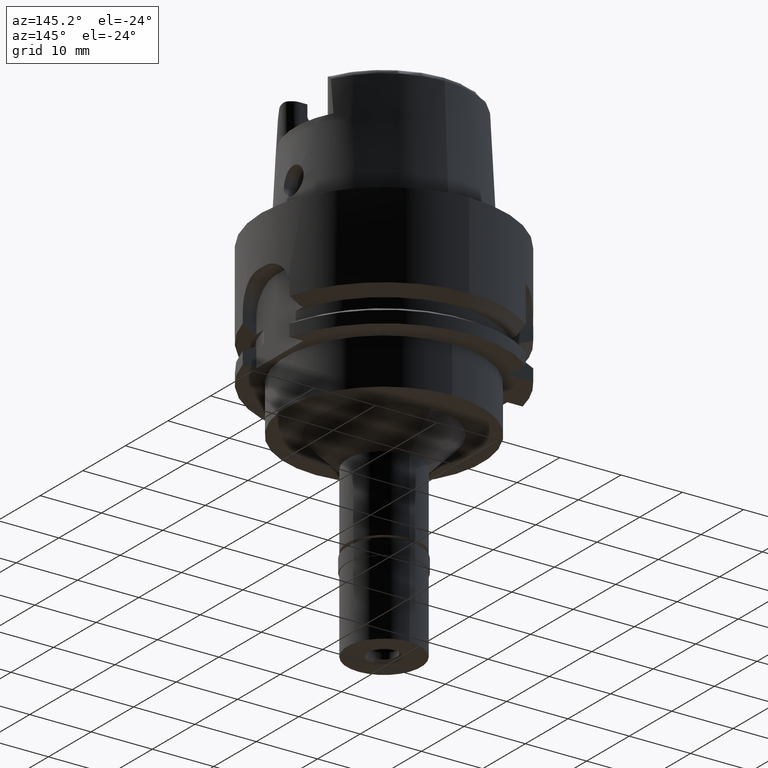
[diagram: clean part render]
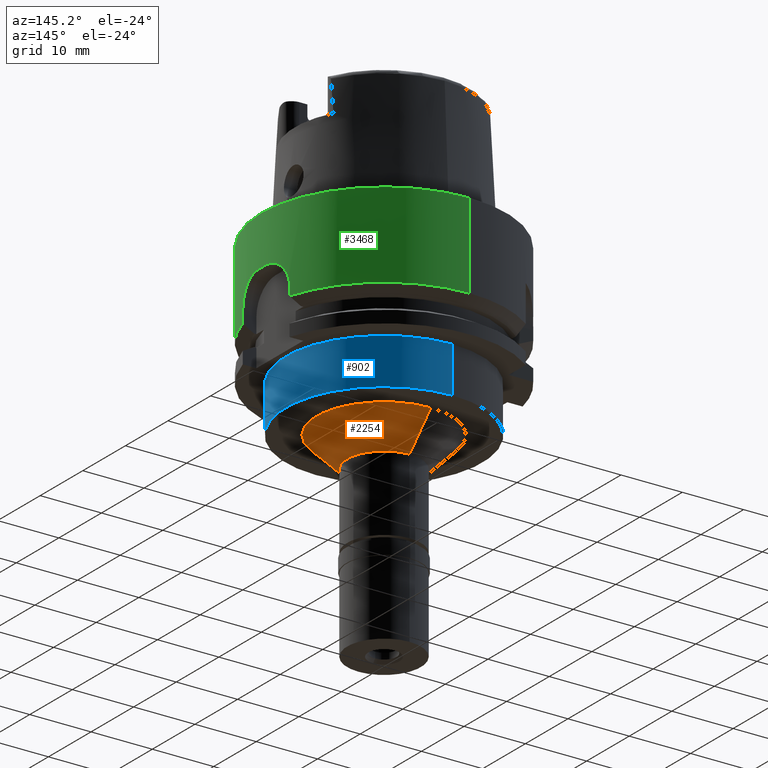
[diagram: same view with three faces highlighted in distinct colors, each labeled with its STEP entity id]
A machine part, auxiliary view with three faces highlighted in distinct colors.
Their STEP definitions:

[orange] entity #2254 — the highlighted conical surface has half-angle 45 deg.
#102 = CIRCLE ( 'NONE', #4206, 11.00000000000000000 ) ;
#153 = CARTESIAN_POINT ( 'NONE',  ( 0.0000000000000000000, 11.00000000000000000, -27.50000000000000000 ) ) ;
#179 = LINE ( 'NONE', #153, #3085 ) ;
#274 = VERTEX_POINT ( 'NONE', #1658 ) ;
#346 = DIRECTION ( 'NONE',  ( 0.0000000000000000000, 1.000000000000000000, 0.0000000000000000000 ) ) ;
#352 = EDGE_CURVE ( 'NONE', #4772, #274, #102, .T. ) ;
#366 = AXIS2_PLACEMENT_3D ( 'NONE', #4092, #3676, #5345 ) ;
#538 = DIRECTION ( 'NONE',  ( 0.0000000000000000000, 0.0000000000000000000, 1.000000000000000000 ) ) ;
#667 = ORIENTED_EDGE ( 'NONE', *, *, #1198, .F. ) ;
#879 = CIRCLE ( 'NONE', #366, 6.000000000000000000 ) ;
#888 = VECTOR ( 'NONE', #5179, 1000.000000000000114 ) ;
#897 = VERTEX_POINT ( 'NONE', #1452 ) ;
#1033 = CARTESIAN_POINT ( 'NONE',  ( 0.0000000000000000000, -11.00000000000000000, -27.50000000000000000 ) ) ;
#1198 = EDGE_CURVE ( 'NONE', #897, #1362, #879, .T. ) ;
#1237 = CARTESIAN_POINT ( 'NONE',  ( 0.0000000000000000000, 0.0000000000000000000, -27.50000000000000000 ) ) ;
#1362 = VERTEX_POINT ( 'NONE', #1716 ) ;
#1452 = CARTESIAN_POINT ( 'NONE',  ( 0.0000000000000000000, 6.000000000000000000, -32.50000000000000000 ) ) ;
#1505 = CONICAL_SURFACE ( 'NONE', #5184, 8.500000000000000000, 0.7853981633972997312 ) ;
#1658 = CARTESIAN_POINT ( 'NONE',  ( 0.0000000000000000000, -11.00000000000000000, -27.50000000000000000 ) ) ;
#1713 = EDGE_LOOP ( 'NONE', ( #3947, #1772, #667, #3029 ) ) ;
#1716 = CARTESIAN_POINT ( 'NONE',  ( 0.0000000000000000000, -6.000000000000000000, -32.50000000000000000 ) ) ;
#1772 = ORIENTED_EDGE ( 'NONE', *, *, #2120, .T. ) ;
#2120 = EDGE_CURVE ( 'NONE', #274, #1362, #5208, .T. ) ;
#2254 = ADVANCED_FACE ( 'NONE', ( #3166 ), #1505, .T. ) ;
#2627 = DIRECTION ( 'NONE',  ( 0.0000000000000000000, -0.7071067811865474617, -0.7071067811865474617 ) ) ;
#3029 = ORIENTED_EDGE ( 'NONE', *, *, #3198, .F. ) ;
#3085 = VECTOR ( 'NONE', #2627, 1000.000000000000114 ) ;
#3166 = FACE_OUTER_BOUND ( 'NONE', #1713, .T. ) ;
#3198 = EDGE_CURVE ( 'NONE', #4772, #897, #179, .T. ) ;
#3481 = CARTESIAN_POINT ( 'NONE',  ( 0.0000000000000000000, 0.0000000000000000000, -30.00000000000000000 ) ) ;
#3676 = DIRECTION ( 'NONE',  ( 0.0000000000000000000, 0.0000000000000000000, -1.000000000000000000 ) ) ;
#3947 = ORIENTED_EDGE ( 'NONE', *, *, #352, .T. ) ;
#4092 = CARTESIAN_POINT ( 'NONE',  ( 0.0000000000000000000, 0.0000000000000000000, -32.50000000000000000 ) ) ;
#4206 = AXIS2_PLACEMENT_3D ( 'NONE', #1237, #4534, #346 ) ;
#4372 = DIRECTION ( 'NONE',  ( 0.0000000000000000000, 1.000000000000000000, 0.0000000000000000000 ) ) ;
#4534 = DIRECTION ( 'NONE',  ( 0.0000000000000000000, 0.0000000000000000000, -1.000000000000000000 ) ) ;
#4772 = VERTEX_POINT ( 'NONE', #5348 ) ;
#5179 = DIRECTION ( 'NONE',  ( 0.0000000000000000000, 0.7071067811865474617, -0.7071067811865474617 ) ) ;
#5184 = AXIS2_PLACEMENT_3D ( 'NONE', #3481, #538, #4372 ) ;
#5208 = LINE ( 'NONE', #1033, #888 ) ;
#5345 = DIRECTION ( 'NONE',  ( 0.0000000000000000000, 1.000000000000000000, 0.0000000000000000000 ) ) ;
#5348 = CARTESIAN_POINT ( 'NONE',  ( 0.0000000000000000000, 11.00000000000000000, -27.50000000000000000 ) ) ;

[blue] entity #902 — the highlighted cylindrical surface (partial cylindrical patch) has radius 16 mm, axis along (0, 0, 1).
#72 = CARTESIAN_POINT ( 'NONE',  ( 0.0000000000000000000, 0.0000000000000000000, -27.50000000000000000 ) ) ;
#180 = DIRECTION ( 'NONE',  ( 0.0000000000000000000, 1.000000000000000000, 0.0000000000000000000 ) ) ;
#364 = DIRECTION ( 'NONE',  ( 0.0000000000000000000, 0.0000000000000000000, 1.000000000000000000 ) ) ;
#457 = AXIS2_PLACEMENT_3D ( 'NONE', #4179, #794, #3407 ) ;
#537 = ORIENTED_EDGE ( 'NONE', *, *, #3271, .T. ) ;
#555 = DIRECTION ( 'NONE',  ( 0.0000000000000000000, 0.0000000000000000000, -1.000000000000000000 ) ) ;
#562 = ORIENTED_EDGE ( 'NONE', *, *, #3106, .T. ) ;
#794 = DIRECTION ( 'NONE',  ( 0.0000000000000000000, 0.0000000000000000000, -1.000000000000000000 ) ) ;
#862 = CARTESIAN_POINT ( 'NONE',  ( 0.0000000000000000000, 16.00000000000000000, -27.50000000000000000 ) ) ;
#902 = ADVANCED_FACE ( 'NONE', ( #4362 ), #2275, .T. ) ;
#966 = VERTEX_POINT ( 'NONE', #4388 ) ;
#990 = DIRECTION ( 'NONE',  ( 0.0000000000000000000, 0.0000000000000000000, 1.000000000000000000 ) ) ;
#1046 = CARTESIAN_POINT ( 'NONE',  ( 0.0000000000000000000, 16.00000000000000000, -20.00000000000000000 ) ) ;
#1340 = EDGE_LOOP ( 'NONE', ( #562, #537, #3609, #3285 ) ) ;
#1387 = VECTOR ( 'NONE', #4787, 1000.000000000000000 ) ;
#1601 = AXIS2_PLACEMENT_3D ( 'NONE', #72, #364, #4804 ) ;
#1643 = VERTEX_POINT ( 'NONE', #862 ) ;
#1777 = CIRCLE ( 'NONE', #457, 16.00000000000000000 ) ;
#1810 = CARTESIAN_POINT ( 'NONE',  ( 0.0000000000000000000, 16.00000000000000000, -20.00000000000000000 ) ) ;
#1845 = LINE ( 'NONE', #3491, #3795 ) ;
#2100 = AXIS2_PLACEMENT_3D ( 'NONE', #2737, #990, #180 ) ;
#2115 = VERTEX_POINT ( 'NONE', #1810 ) ;
#2275 = CYLINDRICAL_SURFACE ( 'NONE', #2100, 16.00000000000000000 ) ;
#2384 = CARTESIAN_POINT ( 'NONE',  ( 0.0000000000000000000, -16.00000000000000000, -27.50000000000000000 ) ) ;
#2737 = CARTESIAN_POINT ( 'NONE',  ( 0.0000000000000000000, 0.0000000000000000000, -59.79999999999999716 ) ) ;
#3000 = VERTEX_POINT ( 'NONE', #2384 ) ;
#3106 = EDGE_CURVE ( 'NONE', #2115, #966, #1777, .T. ) ;
#3107 = LINE ( 'NONE', #1046, #1387 ) ;
#3184 = EDGE_CURVE ( 'NONE', #3000, #1643, #5282, .T. ) ;
#3271 = EDGE_CURVE ( 'NONE', #966, #3000, #1845, .T. ) ;
#3285 = ORIENTED_EDGE ( 'NONE', *, *, #4285, .F. ) ;
#3407 = DIRECTION ( 'NONE',  ( 0.0000000000000000000, 1.000000000000000000, 0.0000000000000000000 ) ) ;
#3491 = CARTESIAN_POINT ( 'NONE',  ( 0.0000000000000000000, -16.00000000000000000, -20.00000000000000000 ) ) ;
#3609 = ORIENTED_EDGE ( 'NONE', *, *, #3184, .T. ) ;
#3795 = VECTOR ( 'NONE', #555, 1000.000000000000000 ) ;
#4179 = CARTESIAN_POINT ( 'NONE',  ( 0.0000000000000000000, 0.0000000000000000000, -20.00000000000000000 ) ) ;
#4285 = EDGE_CURVE ( 'NONE', #2115, #1643, #3107, .T. ) ;
#4362 = FACE_OUTER_BOUND ( 'NONE', #1340, .T. ) ;
#4388 = CARTESIAN_POINT ( 'NONE',  ( 0.0000000000000000000, -16.00000000000000000, -20.00000000000000000 ) ) ;
#4787 = DIRECTION ( 'NONE',  ( 0.0000000000000000000, 0.0000000000000000000, -1.000000000000000000 ) ) ;
#4804 = DIRECTION ( 'NONE',  ( 0.0000000000000000000, -1.000000000000000000, 0.0000000000000000000 ) ) ;
#5282 = CIRCLE ( 'NONE', #1601, 16.00000000000000000 ) ;

[green] entity #3468 — the highlighted cylindrical surface (partial cylindrical patch) has radius 20 mm, axis along (0, 0, 1).
#3 = VERTEX_POINT ( 'NONE', #945 ) ;
#30 = CARTESIAN_POINT ( 'NONE',  ( 19.86146910055557768, -2.348871068700572273, -8.206248360021437094 ) ) ;
#57 = CARTESIAN_POINT ( 'NONE',  ( 19.39600780299115357, -4.882167647177913850, -10.21950844978120720 ) ) ;
#80 = CARTESIAN_POINT ( 'NONE',  ( 19.83212258908739756, -2.585548732823263141, -8.288267443671319512 ) ) ;
#88 = VERTEX_POINT ( 'NONE', #143 ) ;
#111 = CARTESIAN_POINT ( 'NONE',  ( 19.69274314928225422, -3.492268379238754328, -8.753188017611570615 ) ) ;
#138 = CARTESIAN_POINT ( 'NONE',  ( 19.81613325514287638, -2.705294497717142477, -8.335622991193288200 ) ) ;
#143 = CARTESIAN_POINT ( 'NONE',  ( 19.97498435543999662, 0.9999999999999000799, -8.000000000000000000 ) ) ;
#173 = DIRECTION ( 'NONE',  ( 0.0000000000000000000, 1.000000000000000000, 0.0000000000000000000 ) ) ;
#193 = CARTESIAN_POINT ( 'NONE',  ( 19.25972185282163096, 5.392789179745101968, -11.51281003797939206 ) ) ;
#196 = EDGE_CURVE ( 'NONE', #303, #88, #2836, .T. ) ;
#202 = VECTOR ( 'NONE', #4905, 1000.000000000000000 ) ;
#222 = CARTESIAN_POINT ( 'NONE',  ( 0.0000000000000000000, -20.00000000000000000, 4.973799150320999175E-14 ) ) ;
#223 = CARTESIAN_POINT ( 'NONE',  ( 19.79308005088291011, 2.869920567938713862, -8.406735843562756827 ) ) ;
#277 = AXIS2_PLACEMENT_3D ( 'NONE', #2551, #452, #2123 ) ;
#279 = CARTESIAN_POINT ( 'NONE',  ( 0.0000000000000000000, -20.00000000000000000, 2.842170943039999687E-14 ) ) ;
#303 = VERTEX_POINT ( 'NONE', #3721 ) ;
#407 = VERTEX_POINT ( 'NONE', #5332 ) ;
#423 = CARTESIAN_POINT ( 'NONE',  ( 19.45475018711523063, -4.645026843544051154, -9.844581254208636167 ) ) ;
#434 = EDGE_CURVE ( 'NONE', #1060, #1096, #623, .T. ) ;
#438 = AXIS2_PLACEMENT_3D ( 'NONE', #4945, #2433, #3238 ) ;
#450 = CARTESIAN_POINT ( 'NONE',  ( 19.56053743362657826, -4.169621998353268744, -9.305705765964203735 ) ) ;
#452 = DIRECTION ( 'NONE',  ( 0.0000000000000000000, 0.0000000000000000000, 1.000000000000000000 ) ) ;
#454 = VECTOR ( 'NONE', #2485, 1000.000000000000000 ) ;
#474 = CARTESIAN_POINT ( 'NONE',  ( 19.88634664950564712, -2.130603934985399572, -8.141702171101698582 ) ) ;
#571 = CARTESIAN_POINT ( 'NONE',  ( 19.89335567336978627, 2.144328412485492219, -8.101629999660756809 ) ) ;
#589 = EDGE_CURVE ( 'NONE', #3, #3103, #4300, .T. ) ;
#623 = B_SPLINE_CURVE_WITH_KNOTS ( 'NONE', 3,
 ( #2199, #2933, #4584, #5019, #474, #30, #1262, #80, #4240, #2911, #1684, #138, #2601, #4607, #911, #854, #2089, #3800, #4211, #2546, #4187, #3880, #111, #3852, #2142, #3387, #1736, #1797, #4290, #3823, #3362, #2573, #1284, #4264, #2956, #450, #3413, #3014, #828, #423, #57, #4695, #3772, #1318, #1710, #1767, #5044, #3475, #5074, #4641, #882, #2987, #4670, #2491 ),
 .UNSPECIFIED., .F., .F.,
 ( 4, 2, 2, 1, 1, 1, 2, 2, 2, 2, 1, 1, 1, 1, 1, 2, 2, 2, 2, 2, 1, 1, 1, 2, 2, 2, 2, 2, 1, 1, 1, 2, 2, 4 ),
 ( 0.0000000000000000000, 0.1249999999997689071, 0.1874999999996534716, 0.2187499999995958233, 0.2343749999995671518, 0.2421874999995527744, 0.2460937499995456135, 0.2499999999995384248, 0.3124999999994242383, 0.3437499999993670619, 0.3593749999993381961, 0.3671874999993237076, 0.3710937499993162692, 0.3730468749993122168, 0.3740234374993102184, 0.3745117187493091082, 0.3749999999993080535, 0.4374999999993889332, 0.4687499999994294564, 0.4843749999994497735, 0.4921874999994600430, 0.4960937499994650390, 0.4980468749994677036, 0.4990234374994690358, 0.4999999999994703126, 0.6249999999995893285, 0.6874999999996488365, 0.7187499999996783684, 0.7343749999996928013, 0.7421874999997001288, 0.7460937499997037925, 0.7480468749997061240, 0.7499999999997083444, 1.000000000000000000 ),
 .UNSPECIFIED. ) ;
#629 = CARTESIAN_POINT ( 'NONE',  ( 19.31805002971633556, 5.178514043762493912, -10.82961678952050910 ) ) ;
#652 = CARTESIAN_POINT ( 'NONE',  ( 19.43284809394379664, 4.733461550932530848, -9.983469680863667151 ) ) ;
#660 = CARTESIAN_POINT ( 'NONE',  ( 19.22888452303000051, -5.500000000000000000, -12.50000000000000000 ) ) ;
#671 = CARTESIAN_POINT ( 'NONE',  ( 19.22888452303000051, 5.500000000000000000, -12.50000000000000000 ) ) ;
#821 = CARTESIAN_POINT ( 'NONE',  ( 0.0000000000000000000, 20.00000000000000000, -13.97927405783999966 ) ) ;
#828 = CARTESIAN_POINT ( 'NONE',  ( 19.50217921959730205, -4.442594003733398189, -9.578651589275207101 ) ) ;
#854 = CARTESIAN_POINT ( 'NONE',  ( 19.73879065015394474, -3.222290560682940175, -8.586223259454346390 ) ) ;
#882 = CARTESIAN_POINT ( 'NONE',  ( 19.32339585466796450, -5.158492913142817216, -10.78041865482828499 ) ) ;
#911 = CARTESIAN_POINT ( 'NONE',  ( 19.74957719967446934, -3.155379730779135361, -8.549071909224613464 ) ) ;
#945 = CARTESIAN_POINT ( 'NONE',  ( 19.22888438503999708, 5.500000482439000749, -13.97927001509999911 ) ) ;
#984 = DIRECTION ( 'NONE',  ( 1.988963543757989487E-08, 6.953939028894961663E-08, -0.9999999999999973355 ) ) ;
#1060 = VERTEX_POINT ( 'NONE', #4861 ) ;
#1082 = CARTESIAN_POINT ( 'NONE',  ( 19.57669236913240951, 4.094477243181033010, -9.229513695134629714 ) ) ;
#1096 = VERTEX_POINT ( 'NONE', #3651 ) ;
#1104 = CARTESIAN_POINT ( 'NONE',  ( 19.29610026531020850, 5.260308519016965612, -11.04748964016566148 ) ) ;
#1262 = CARTESIAN_POINT ( 'NONE',  ( 19.84841862392591239, -2.458145788978062463, -8.241565015754648726 ) ) ;
#1284 = CARTESIAN_POINT ( 'NONE',  ( 19.57603633006141663, -4.096177702136805543, -9.234171356003837872 ) ) ;
#1318 = CARTESIAN_POINT ( 'NONE',  ( 19.34811643789123181, -5.065740602235473844, -10.57039094677958779 ) ) ;
#1326 = DIRECTION ( 'NONE',  ( 0.0000000000000000000, 0.0000000000000000000, 1.000000000000000000 ) ) ;
#1431 = CARTESIAN_POINT ( 'NONE',  ( 0.0000000000000000000, 20.00000000000000000, 2.842170943039999687E-14 ) ) ;
#1439 = ORIENTED_EDGE ( 'NONE', *, *, #2133, .F. ) ;
#1441 = CARTESIAN_POINT ( 'NONE',  ( 19.28670451638931027, 5.294861289714977381, -11.15473651105902775 ) ) ;
#1490 = CARTESIAN_POINT ( 'NONE',  ( 19.26935851838151947, 5.358219115044847491, -11.36942689067134005 ) ) ;
#1519 = CARTESIAN_POINT ( 'NONE',  ( 19.37460722631804444, 4.968141091574619139, -10.35745565388886291 ) ) ;
#1605 = EDGE_CURVE ( 'NONE', #2333, #3403, #3726, .T. ) ;
#1660 = EDGE_CURVE ( 'NONE', #4726, #2333, #2637, .T. ) ;
#1684 = CARTESIAN_POINT ( 'NONE',  ( 19.81758746035329821, -2.694603807303679766, -8.331257517397663293 ) ) ;
#1710 = CARTESIAN_POINT ( 'NONE',  ( 19.33808127858485904, -5.103432223538802326, -10.65263608821719288 ) ) ;
#1736 = CARTESIAN_POINT ( 'NONE',  ( 19.67792994971534881, -3.575208927927476577, -8.806736260004933925 ) ) ;
#1767 = CARTESIAN_POINT ( 'NONE',  ( 19.33325746712852222, -5.121509964628943479, -10.69317378615918734 ) ) ;
#1768 = VECTOR ( 'NONE', #4058, 1000.000000000000000 ) ;
#1797 = CARTESIAN_POINT ( 'NONE',  ( 19.64440606327426764, -3.753015825505305880, -8.939609798992917078 ) ) ;
#1798 = EDGE_CURVE ( 'NONE', #1060, #88, #3168, .T. ) ;
#1835 = CARTESIAN_POINT ( 'NONE',  ( 19.32104445936979786, 5.167284975352738563, -10.80183977556034591 ) ) ;
#1847 = EDGE_CURVE ( 'NONE', #3, #303, #2837, .T. ) ;
#1862 = CARTESIAN_POINT ( 'NONE',  ( 19.31475624754254738, 5.190847333182726508, -10.86066003661227164 ) ) ;
#1910 = CARTESIAN_POINT ( 'NONE',  ( 19.53068921811413006, 4.307772359090763281, -9.448422801194535481 ) ) ;
#2033 = CYLINDRICAL_SURFACE ( 'NONE', #3709, 20.00000000000000000 ) ;
#2057 = ORIENTED_EDGE ( 'NONE', *, *, #3095, .F. ) ;
#2089 = CARTESIAN_POINT ( 'NONE',  ( 19.72182370919556860, -3.324154676918617657, -8.646448266145705830 ) ) ;
#2123 = DIRECTION ( 'NONE',  ( 0.0000000000000000000, -1.000000000000000000, 0.0000000000000000000 ) ) ;
#2133 = EDGE_CURVE ( 'NONE', #1096, #407, #2732, .T. ) ;
#2142 = CARTESIAN_POINT ( 'NONE',  ( 19.69198617144294161, -3.496533464392037160, -8.756028756603322805 ) ) ;
#2199 = CARTESIAN_POINT ( 'NONE',  ( 19.97498435543999662, -0.9999999999999000799, -8.000000000000000000 ) ) ;
#2236 = CARTESIAN_POINT ( 'NONE',  ( 19.94751910473255307, 1.548617953056870000, -7.999999999999991118 ) ) ;
#2253 = EDGE_LOOP ( 'NONE', ( #4705, #3412, #4136, #3668, #2057, #4506, #2481, #3257, #1439, #3152 ) ) ;
#2291 = CARTESIAN_POINT ( 'NONE',  ( 19.76304889700402967, 3.072041751379376073, -8.504730640401618302 ) ) ;
#2315 = CARTESIAN_POINT ( 'NONE',  ( 19.48953007571676821, 4.491951112803580948, -9.660445326844032010 ) ) ;
#2333 = VERTEX_POINT ( 'NONE', #222 ) ;
#2337 = CARTESIAN_POINT ( 'NONE',  ( 19.55092274637132022, 4.214494902100974549, -9.350849150100273732 ) ) ;
#2339 = CARTESIAN_POINT ( 'NONE',  ( 19.22888438503999708, 5.500000482439000749, -13.97927001509999911 ) ) ;
#2433 = DIRECTION ( 'NONE',  ( 0.0000000000000000000, 0.0000000000000000000, 1.000000000000000000 ) ) ;
#2481 = ORIENTED_EDGE ( 'NONE', *, *, #1605, .T. ) ;
#2485 = DIRECTION ( 'NONE',  ( 0.0000000000000000000, -4.549132851063000272E-14, -1.000000000000000000 ) ) ;
#2491 = CARTESIAN_POINT ( 'NONE',  ( 19.22888452303000051, -5.500000000000000000, -12.50000000000000000 ) ) ;
#2525 = FACE_OUTER_BOUND ( 'NONE', #2253, .T. ) ;
#2546 = CARTESIAN_POINT ( 'NONE',  ( 19.69735038645563918, -3.466205823345975379, -8.735957270025103583 ) ) ;
#2551 = CARTESIAN_POINT ( 'NONE',  ( 0.0000000000000000000, 0.0000000000000000000, -13.97927405783999966 ) ) ;
#2573 = CARTESIAN_POINT ( 'NONE',  ( 19.58334044018517517, -4.060857313348768649, -9.201193650481039654 ) ) ;
#2585 = CARTESIAN_POINT ( 'NONE',  ( 0.0000000000000000000, 0.0000000000000000000, -59.79999999999999716 ) ) ;
#2601 = CARTESIAN_POINT ( 'NONE',  ( 19.79878724721146099, -2.832227450067799523, -8.387867633535138978 ) ) ;
#2637 = CIRCLE ( 'NONE', #4478, 20.00000000000000000 ) ;
#2667 = CARTESIAN_POINT ( 'NONE',  ( 19.31947859009914836, 5.173158578107386774, -10.81632238106961985 ) ) ;
#2722 = CARTESIAN_POINT ( 'NONE',  ( 19.30832678473931452, 5.214864014485015353, -10.92283349827791561 ) ) ;
#2732 = LINE ( 'NONE', #660, #2982 ) ;
#2750 = CARTESIAN_POINT ( 'NONE',  ( 19.64372892379043023, 3.757534281539691268, -8.940804196873074261 ) ) ;
#2775 = CARTESIAN_POINT ( 'NONE',  ( 19.71061661248998576, 3.394884962808642825, -8.687387489418284758 ) ) ;
#2836 = B_SPLINE_CURVE_WITH_KNOTS ( 'NONE', 3,
 ( #671, #5169, #4402, #193, #1490, #1441, #1104, #2722, #1862, #629, #2667, #5230, #1835, #3539, #1519, #652, #3167, #2315, #4374, #3193, #1910, #4848, #5255, #2337, #3083, #1082, #3112, #2750, #4793, #2775, #4022, #2291, #3970, #223, #4871, #3509, #571, #2236, #4764 ),
 .UNSPECIFIED., .F., .F.,
 ( 4, 2, 2, 1, 1, 1, 1, 2, 2, 2, 2, 2, 1, 1, 2, 2, 2, 2, 2, 1, 2, 2, 4 ),
 ( 0.0000000000000000000, 0.1250000000000104361, 0.1875000000000159872, 0.2187500000000187628, 0.2343750000000204836, 0.2421875000000216216, 0.2460937500000223710, 0.2480468750000226763, 0.2500000000000229816, 0.3750000000000198175, 0.4375000000000182077, 0.4687500000000173195, 0.4843750000000170974, 0.4921875000000173195, 0.4960937500000174305, 0.5000000000000175415, 0.5625000000000155431, 0.6250000000000135447, 0.6875000000000115463, 0.7187500000000103251, 0.7343750000000098810, 0.7500000000000094369, 1.000000000000000000 ),
 .UNSPECIFIED. ) ;
#2837 = LINE ( 'NONE', #2339, #1768 ) ;
#2911 = CARTESIAN_POINT ( 'NONE',  ( 19.82004290327910567, -2.676439156276073206, -8.323919576290942146 ) ) ;
#2933 = CARTESIAN_POINT ( 'NONE',  ( 19.96138875912112098, -1.271571823699878534, -7.999999999999994671 ) ) ;
#2956 = CARTESIAN_POINT ( 'NONE',  ( 19.56252063930821805, -4.160305377305268060, -9.296470220472482282 ) ) ;
#2982 = VECTOR ( 'NONE', #984, 1000.000000000000000 ) ;
#2987 = CARTESIAN_POINT ( 'NONE',  ( 19.26022506823636959, -5.395878610493000771, -11.35624131269664794 ) ) ;
#3014 = CARTESIAN_POINT ( 'NONE',  ( 19.55831082386064068, -4.180059027274327654, -9.316097855248454351 ) ) ;
#3083 = CARTESIAN_POINT ( 'NONE',  ( 19.55296420876889130, 4.205003748717079048, -9.341196998750151081 ) ) ;
#3095 = EDGE_CURVE ( 'NONE', #4726, #3103, #4125, .T. ) ;
#3103 = VERTEX_POINT ( 'NONE', #821 ) ;
#3112 = CARTESIAN_POINT ( 'NONE',  ( 19.59903263455380085, 3.985266675276835535, -9.129532234786314149 ) ) ;
#3152 = ORIENTED_EDGE ( 'NONE', *, *, #434, .F. ) ;
#3167 = CARTESIAN_POINT ( 'NONE',  ( 19.45429869784025811, 4.644412652473961955, -9.855112538746510609 ) ) ;
#3168 = CIRCLE ( 'NONE', #4747, 20.00000000000000355 ) ;
#3170 = DIRECTION ( 'NONE',  ( 0.0000000000000000000, 0.0000000000000000000, 1.000000000000000000 ) ) ;
#3193 = CARTESIAN_POINT ( 'NONE',  ( 19.52092653863507365, 4.352013082524368137, -9.497352243686126627 ) ) ;
#3238 = DIRECTION ( 'NONE',  ( 0.9614442261514726251, 0.2749999999999924727, 0.0000000000000000000 ) ) ;
#3247 = CIRCLE ( 'NONE', #277, 20.00000000000000000 ) ;
#3257 = ORIENTED_EDGE ( 'NONE', *, *, #5146, .T. ) ;
#3314 = CARTESIAN_POINT ( 'NONE',  ( 0.0000000000000000000, 0.0000000000000000000, 4.973799150320999175E-14 ) ) ;
#3362 = CARTESIAN_POINT ( 'NONE',  ( 19.59746964130676972, -3.991897465615183105, -9.138090891699411245 ) ) ;
#3387 = CARTESIAN_POINT ( 'NONE',  ( 19.69006013265592259, -3.507378425386567411, -8.763260683198105028 ) ) ;
#3403 = VERTEX_POINT ( 'NONE', #4197 ) ;
#3412 = ORIENTED_EDGE ( 'NONE', *, *, #196, .F. ) ;
#3413 = CARTESIAN_POINT ( 'NONE',  ( 19.55921030672291749, -4.175847404122747797, -9.311895150443433522 ) ) ;
#3468 = ADVANCED_FACE ( 'NONE', ( #2525 ), #2033, .T. ) ;
#3475 = CARTESIAN_POINT ( 'NONE',  ( 19.32540921218284069, -5.150933045010750000, -10.76223087732004835 ) ) ;
#3509 = CARTESIAN_POINT ( 'NONE',  ( 19.80744021060057847, 2.768533228843972349, -8.361899853710310637 ) ) ;
#3539 = CARTESIAN_POINT ( 'NONE',  ( 19.34392790665239303, 5.081397619062402171, -10.59153971330686517 ) ) ;
#3651 = CARTESIAN_POINT ( 'NONE',  ( 19.22888452303000051, -5.500000000000000000, -12.50000000000000000 ) ) ;
#3668 = ORIENTED_EDGE ( 'NONE', *, *, #589, .T. ) ;
#3709 = AXIS2_PLACEMENT_3D ( 'NONE', #2585, #1326, #173 ) ;
#3721 = CARTESIAN_POINT ( 'NONE',  ( 19.22888452303000051, 5.500000000000000000, -12.50000000000000000 ) ) ;
#3726 = LINE ( 'NONE', #279, #202 ) ;
#3750 = DIRECTION ( 'NONE',  ( 0.0000000000000000000, 1.000000000000000000, 0.0000000000000000000 ) ) ;
#3772 = CARTESIAN_POINT ( 'NONE',  ( 19.35532325928711828, -5.038565037878893094, -10.51399933875955384 ) ) ;
#3800 = CARTESIAN_POINT ( 'NONE',  ( 19.71314345954695924, -3.375460247585270857, -8.677685215591239398 ) ) ;
#3823 = CARTESIAN_POINT ( 'NONE',  ( 19.60625041655323741, -3.948170071527211000, -9.099824148022134906 ) ) ;
#3852 = CARTESIAN_POINT ( 'NONE',  ( 19.69235738726312945, -3.494442703321395616, -8.754635223990920423 ) ) ;
#3880 = CARTESIAN_POINT ( 'NONE',  ( 19.69332140797660458, -3.489007400821729554, -8.751019594731543449 ) ) ;
#3970 = CARTESIAN_POINT ( 'NONE',  ( 19.77827450583017210, 2.972167438716637022, -8.453965286069237806 ) ) ;
#4022 = CARTESIAN_POINT ( 'NONE',  ( 19.73203759432056259, 3.268435167300694388, -8.610740559878609091 ) ) ;
#4058 = DIRECTION ( 'NONE',  ( 9.328386055539403595E-08, -3.261333081564141678E-07, 0.9999999999999424904 ) ) ;
#4125 = LINE ( 'NONE', #4627, #454 ) ;
#4136 = ORIENTED_EDGE ( 'NONE', *, *, #1847, .F. ) ;
#4187 = CARTESIAN_POINT ( 'NONE',  ( 19.69466798792321782, -3.481402031433701083, -8.745976627359674183 ) ) ;
#4197 = CARTESIAN_POINT ( 'NONE',  ( 0.0000000000000000000, -20.00000000000000000, -13.97927405783999966 ) ) ;
#4211 = CARTESIAN_POINT ( 'NONE',  ( 19.70267213807714768, -3.435873196089922477, -8.716183529091241056 ) ) ;
#4240 = CARTESIAN_POINT ( 'NONE',  ( 19.82370695197549182, -2.649185133246400703, -8.313013301156070511 ) ) ;
#4264 = CARTESIAN_POINT ( 'NONE',  ( 19.56709572651514506, -4.138719417156759839, -9.275258457773182030 ) ) ;
#4290 = CARTESIAN_POINT ( 'NONE',  ( 19.63067666578887938, -3.824795348198209322, -8.995411347834611604 ) ) ;
#4300 = CIRCLE ( 'NONE', #438, 20.00000000000000355 ) ;
#4374 = CARTESIAN_POINT ( 'NONE',  ( 19.50178311368090789, 4.437984536188096740, -9.595210275325154470 ) ) ;
#4402 = CARTESIAN_POINT ( 'NONE',  ( 19.23659385547790279, 5.474636443436918576, -11.94125865173064582 ) ) ;
#4478 = AXIS2_PLACEMENT_3D ( 'NONE', #3314, #5086, #3750 ) ;
#4506 = ORIENTED_EDGE ( 'NONE', *, *, #1660, .T. ) ;
#4584 = CARTESIAN_POINT ( 'NONE',  ( 19.94126833981959379, -1.553961944005697760, -8.024635853722200451 ) ) ;
#4607 = CARTESIAN_POINT ( 'NONE',  ( 19.78036261488083269, -2.958436143423619047, -8.445803887148748856 ) ) ;
#4627 = CARTESIAN_POINT ( 'NONE',  ( 0.0000000000000000000, 20.00000000000000000, 2.842170943039999687E-14 ) ) ;
#4641 = CARTESIAN_POINT ( 'NONE',  ( 19.32361526154545217, -5.157668876976087446, -10.77843043010849655 ) ) ;
#4670 = CARTESIAN_POINT ( 'NONE',  ( 19.22888452303000051, -5.500000000000000000, -11.94492879392998752 ) ) ;
#4695 = CARTESIAN_POINT ( 'NONE',  ( 19.37849386904962756, -4.950198544500286957, -10.34065838146698724 ) ) ;
#4705 = ORIENTED_EDGE ( 'NONE', *, *, #1798, .T. ) ;
#4726 = VERTEX_POINT ( 'NONE', #1431 ) ;
#4747 = AXIS2_PLACEMENT_3D ( 'NONE', #5286, #3170, #4874 ) ;
#4764 = CARTESIAN_POINT ( 'NONE',  ( 19.97498435543999662, 0.9999999999999000799, -8.000000000000000000 ) ) ;
#4793 = CARTESIAN_POINT ( 'NONE',  ( 19.66628108874564518, 3.637937545223222546, -8.851332620197773338 ) ) ;
#4848 = CARTESIAN_POINT ( 'NONE',  ( 19.54241320309320429, 4.253900727512967883, -9.391460062520181395 ) ) ;
#4861 = CARTESIAN_POINT ( 'NONE',  ( 19.97498435543999662, -0.9999999999999000799, -8.000000000000000000 ) ) ;
#4871 = CARTESIAN_POINT ( 'NONE',  ( 19.80285706674621338, 2.801246046131140588, -8.376054429788005962 ) ) ;
#4874 = DIRECTION ( 'NONE',  ( 0.9987492177719088371, -0.04999999999999998890, 0.0000000000000000000 ) ) ;
#4905 = DIRECTION ( 'NONE',  ( 0.0000000000000000000, 4.549132851063000272E-14, -1.000000000000000000 ) ) ;
#4945 = CARTESIAN_POINT ( 'NONE',  ( 0.0000000000000000000, 0.0000000000000000000, -13.97927405783999966 ) ) ;
#5019 = CARTESIAN_POINT ( 'NONE',  ( 19.90130047639337363, -1.985477846421476622, -8.106792409467621141 ) ) ;
#5044 = CARTESIAN_POINT ( 'NONE',  ( 19.32796878144064934, -5.141330893544608038, -10.73939453386890719 ) ) ;
#5074 = CARTESIAN_POINT ( 'NONE',  ( 19.32433041969795084, -5.154983158805767296, -10.77195855819587678 ) ) ;
#5086 = DIRECTION ( 'NONE',  ( 0.0000000000000000000, 0.0000000000000000000, -1.000000000000000000 ) ) ;
#5146 = EDGE_CURVE ( 'NONE', #3403, #407, #3247, .T. ) ;
#5169 = CARTESIAN_POINT ( 'NONE',  ( 19.22888452303000051, 5.500000000000000000, -12.22452500506790862 ) ) ;
#5230 = CARTESIAN_POINT ( 'NONE',  ( 19.32043472801015938, 5.169572748141373353, -10.80746168714704858 ) ) ;
#5255 = CARTESIAN_POINT ( 'NONE',  ( 19.54750938070997890, 4.230322960344789607, -9.367087278118559013 ) ) ;
#5286 = CARTESIAN_POINT ( 'NONE',  ( 0.0000000000000000000, 0.0000000000000000000, -8.000000000000000000 ) ) ;
#5332 = CARTESIAN_POINT ( 'NONE',  ( 19.22888452303000051, -5.499999999998999911, -13.97927405783999966 ) ) ;